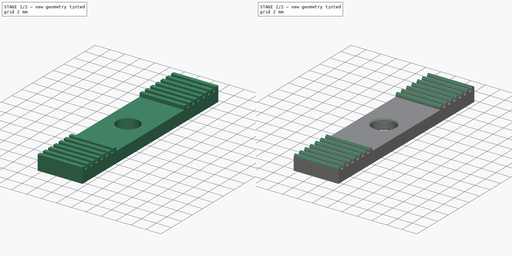
[diagram: build sequence overview — one tinted view per stage of 2, left to right]
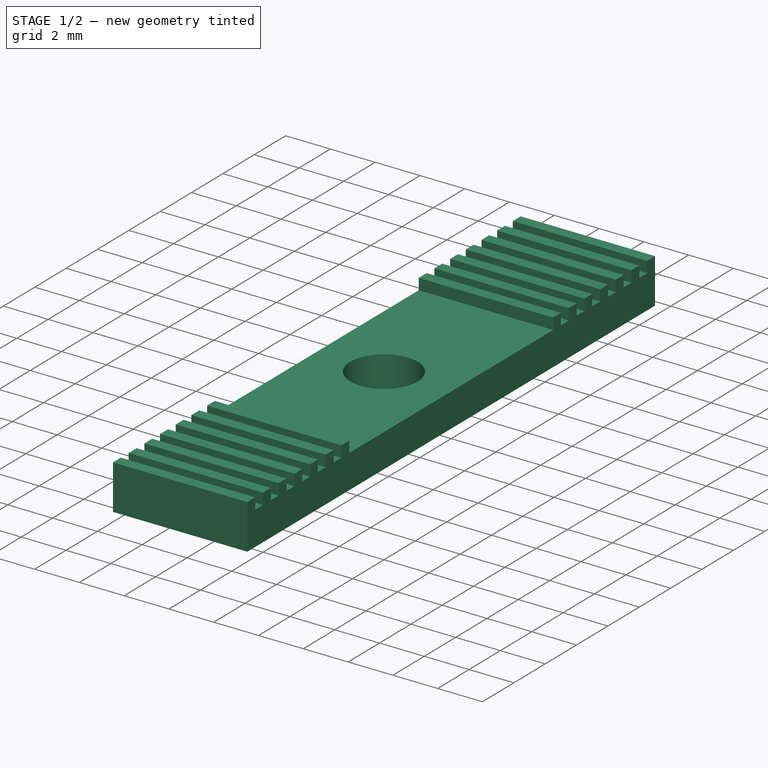
[diagram: stage 1 of 2 — iso view after this stage's code; geometry added in this stage tinted green]
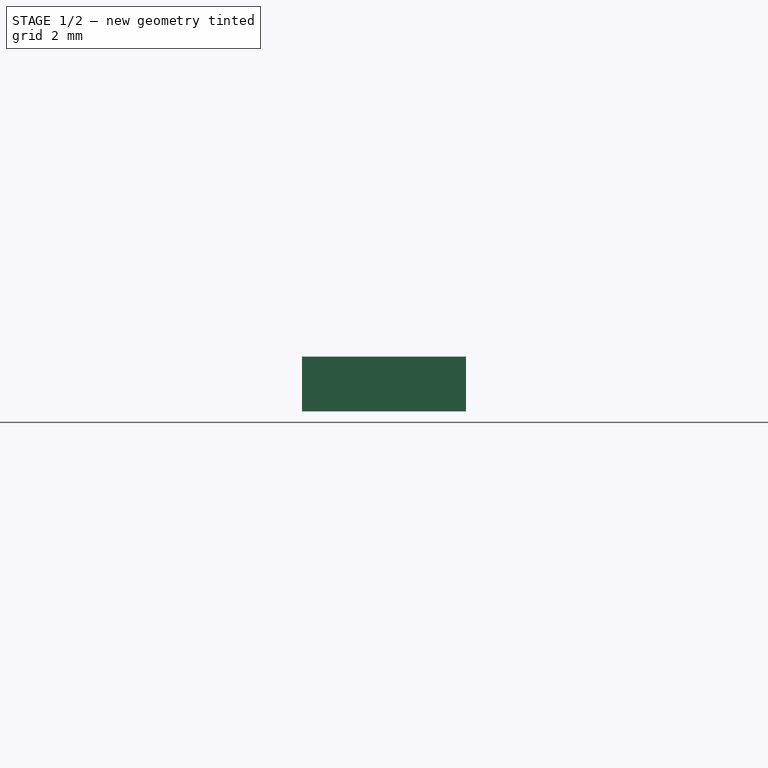
[diagram: stage 1 of 2 — front view after this stage's code; geometry added in this stage tinted green]
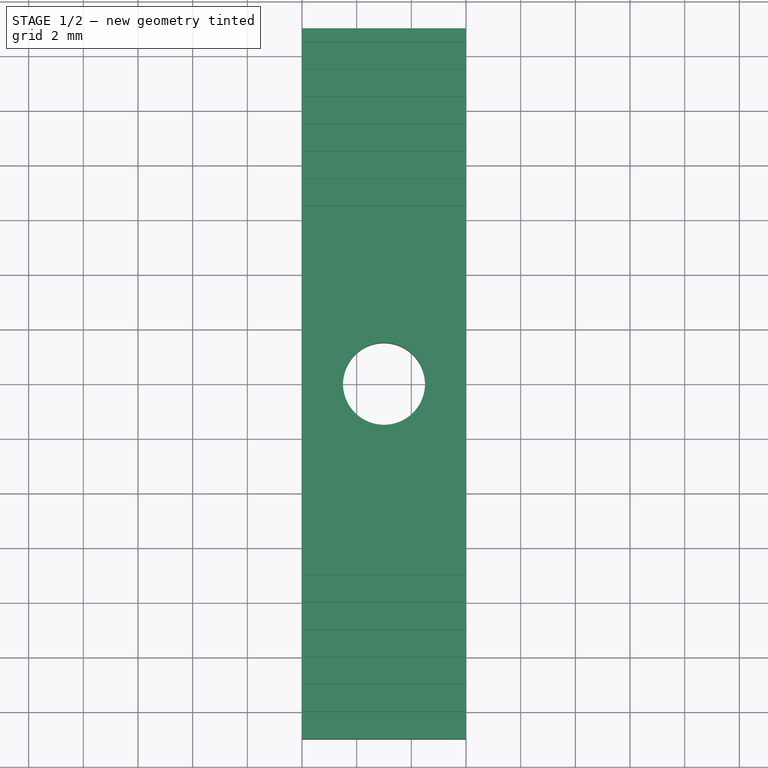
[diagram: stage 1 of 2 — top view after this stage's code; geometry added in this stage tinted green]
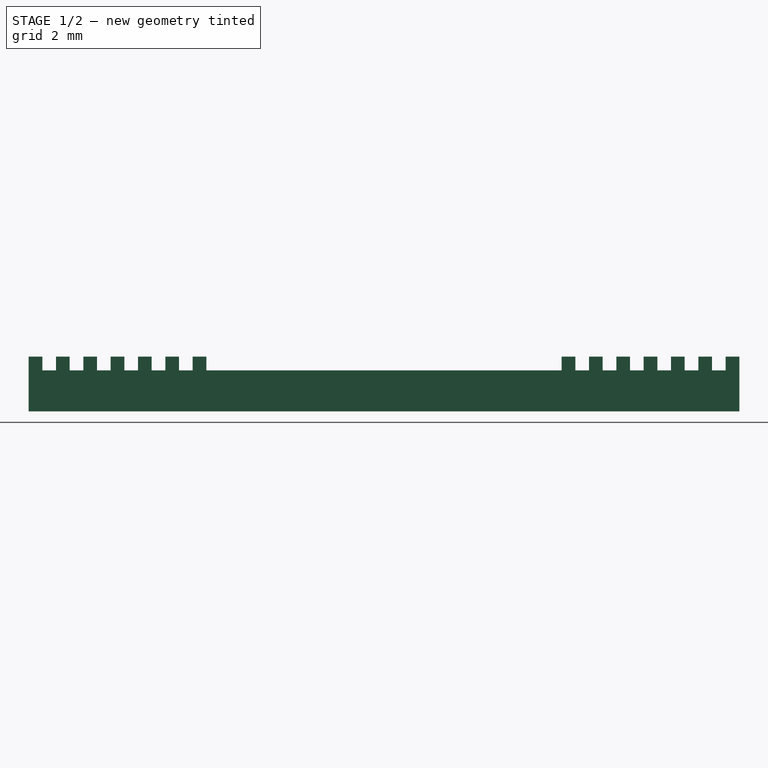
[diagram: stage 1 of 2 — right view after this stage's code; geometry added in this stage tinted green]
FCSTD DOCUMENT  (FreeCAD 1.0R39109 (Git))
Label: 2_belt_clamp
License: All rights reserved
LicenseURL: https://en.wikipedia.org/wiki/All_rights_reserved
objects: Sketcher::SketchObject×2, App::FeaturePython×1, PartDesign::Pad×1, PartDesign::Hole×1, PartDesign::Fillet×1, PartDesign::Chamfer×1, PartDesign::Body×1
note: 17 computed .brp shape members not serialized (recipe doc carries the construction recipe); baked Part::Feature solids carry a one-line shape summary decoded from their .brp

FEATURE [App::FeaturePython] dd  # WARN: FeaturePython — macro-defined, semantics opaque (R4)
  DynamicData = Created with DynamicData (v2.74) workbench. | This is a simple container object built | for holding custom properties.
  H_1 = 2
  L_1 = 26
  W_1 = 6
FEATURE [Sketcher::SketchObject] Sketch
  ArcFitTolerance = 1e-06
  AttachmentSupport = -> [YZ_Plane]
  FullyConstrained = false
  MakeInternals = false
  MapMode = 5
  Placement = pos=(0,0,0) rot=(0.57735,0.57735,0.57735;2.0944rad)
  expr: Constraints[162] = dd.L_1 / 2
  expr: Constraints[6] = dd.L_1
  expr: Constraints[7] = dd.H_1
  sketch-geometry (61):
    g0: LineSegment [constr] StartX=14.6619 StartY=0.5 StartZ=0 EndX=-13 EndY=0.5 EndZ=0
    g1: LineSegment StartX=-13 StartY=0.5 StartZ=0 EndX=-13 EndY=-1.5 EndZ=0
    g2: LineSegment StartX=-13 StartY=-1.5 StartZ=0 EndX=13 EndY=-1.5 EndZ=0
    g3: GeomPoint [constr] X=0 Y=0 Z=0
    g4: LineSegment StartX=-13 StartY=0.5 StartZ=0 EndX=-12.5 EndY=0.5 EndZ=0
    g5: LineSegment StartX=-12.5 StartY=0.5 StartZ=0 EndX=-12.5 EndY=0 EndZ=0
    g6: LineSegment StartX=-12.5 StartY=0 StartZ=0 EndX=-12 EndY=0 EndZ=0
    g7: LineSegment StartX=-12 StartY=0 StartZ=0 EndX=-12 EndY=0.5 EndZ=0
    g8: LineSegment StartX=-12 StartY=0.5 StartZ=0 EndX=-11.5 EndY=0.5 EndZ=0
    g9: LineSegment StartX=-11.5 StartY=0.5 StartZ=0 EndX=-11.5 EndY=0 EndZ=0
    g10: LineSegment StartX=-11.5 StartY=0 StartZ=0 EndX=-11 EndY=0 EndZ=0
    g11: LineSegment StartX=-11 StartY=0 StartZ=0 EndX=-11 EndY=0.5 EndZ=0
    g12: LineSegment StartX=-11 StartY=0.5 StartZ=0 EndX=-10.5 EndY=0.5 EndZ=0
    g13: LineSegment StartX=-10.5 StartY=0.5 StartZ=0 EndX=-10.5 EndY=0 EndZ=0
    g14: LineSegment StartX=-10.5 StartY=0 StartZ=0 EndX=-10 EndY=0 EndZ=0
    g15: LineSegment StartX=-10 StartY=0 StartZ=0 EndX=-10 EndY=0.5 EndZ=0
    g16: LineSegment StartX=-10 StartY=0.5 StartZ=0 EndX=-9.5 EndY=0.5 EndZ=0
    g17: LineSegment StartX=-9.5 StartY=0.5 StartZ=0 EndX=-9.5 EndY=0 EndZ=0
    g18: LineSegment StartX=-9.5 StartY=0 StartZ=0 EndX=-9 EndY=0 EndZ=0
    g19: LineSegment StartX=-9 StartY=0 StartZ=0 EndX=-9 EndY=0.5 EndZ=0
    g20: LineSegment StartX=-9 StartY=0.5 StartZ=0 EndX=-8.5 EndY=0.5 EndZ=0
    g21: LineSegment StartX=-8.5 StartY=0.5 StartZ=0 EndX=-8.5 EndY=0 EndZ=0
    g22: LineSegment StartX=-8.5 StartY=0 StartZ=0 EndX=-8 EndY=0 EndZ=0
    g23: LineSegment StartX=-8 StartY=0 StartZ=0 EndX=-8 EndY=0.5 EndZ=0
    g24: LineSegment StartX=-8 StartY=0.5 StartZ=0 EndX=-7.5 EndY=0.5 EndZ=0
    g25: LineSegment StartX=-7.5 StartY=0.5 StartZ=0 EndX=-7.5 EndY=0 EndZ=0
    g26: LineSegment StartX=-7.5 StartY=0 StartZ=0 EndX=-7 EndY=0 EndZ=0
    g27: LineSegment StartX=-7 StartY=0 StartZ=0 EndX=-7 EndY=0.5 EndZ=0
    g28: LineSegment StartX=-7 StartY=0.5 StartZ=0 EndX=-6.5 EndY=0.5 EndZ=0
    g29: LineSegment StartX=-6.5 StartY=0.5 StartZ=0 EndX=-6.5 EndY=0 EndZ=0
    g30: LineSegment StartX=-6.5 StartY=0 StartZ=0 EndX=0 EndY=0 EndZ=0
    g31: LineSegment [constr] StartX=-14.6619 StartY=0.5 StartZ=0 EndX=13 EndY=0.5 EndZ=0
    g32: LineSegment StartX=13 StartY=0.5 StartZ=0 EndX=13 EndY=-1.5 EndZ=0
    g33: GeomPoint [constr] X=0 Y=0 Z=0
    g34: LineSegment StartX=13 StartY=0.5 StartZ=0 EndX=12.5 EndY=0.5 EndZ=0
    g35: LineSegment StartX=12.5 StartY=0.5 StartZ=0 EndX=12.5 EndY=1.9713e-06 EndZ=0
    g36: LineSegment StartX=12.5 StartY=1.9713e-06 StartZ=0 EndX=12 EndY=1.93501e-06 EndZ=0
    g37: LineSegment StartX=12 StartY=1.93501e-06 StartZ=0 EndX=12 EndY=0.5 EndZ=0
    g38: LineSegment StartX=12 StartY=0.5 StartZ=0 EndX=11.5 EndY=0.5 EndZ=0
    g39: LineSegment StartX=11.5 StartY=0.5 StartZ=0 EndX=11.5 EndY=-1.7311e-12 EndZ=0
    g40: LineSegment StartX=11.5 StartY=-1.7311e-12 StartZ=0 EndX=11 EndY=1.7311e-12 EndZ=0
    g41: LineSegment StartX=11 StartY=1.7311e-12 StartZ=0 EndX=11 EndY=0.5 EndZ=0
    g42: LineSegment StartX=11 StartY=0.5 StartZ=0 EndX=10.5 EndY=0.5 EndZ=0
    g43: LineSegment StartX=10.5 StartY=0.5 StartZ=0 EndX=10.5 EndY=-1.064e-13 EndZ=0
    g44: LineSegment StartX=10.5 StartY=-1.064e-13 StartZ=0 EndX=10 EndY=1.064e-13 EndZ=0
    g45: LineSegment StartX=10 StartY=1.064e-13 StartZ=0 EndX=10 EndY=0.5 EndZ=0
    g46: LineSegment StartX=10 StartY=0.5 StartZ=0 EndX=9.5 EndY=0.5 EndZ=0
    g47: LineSegment StartX=9.5 StartY=0.5 StartZ=0 EndX=9.5 EndY=-1.3e-15 EndZ=0
    g48: LineSegment StartX=9.5 StartY=-1.3e-15 StartZ=0 EndX=9 EndY=1.3e-15 EndZ=0
    g49: LineSegment StartX=9 StartY=1.3e-15 StartZ=0 EndX=9 EndY=0.5 EndZ=0
    g50: LineSegment StartX=9 StartY=0.5 StartZ=0 EndX=8.5 EndY=0.5 EndZ=0
    g51: LineSegment StartX=8.5 StartY=0.5 StartZ=0 EndX=8.5 EndY=0 EndZ=0
    g52: LineSegment StartX=8.5 StartY=0 StartZ=0 EndX=8 EndY=0 EndZ=0
    g53: LineSegment StartX=8 StartY=0 StartZ=0 EndX=8 EndY=0.5 EndZ=0
    g54: LineSegment StartX=8 StartY=0.5 StartZ=0 EndX=7.5 EndY=0.5 EndZ=0
    g55: LineSegment StartX=7.5 StartY=0.5 StartZ=0 EndX=7.5 EndY=0 EndZ=0
    g56: LineSegment StartX=7.5 StartY=0 StartZ=0 EndX=7 EndY=0 EndZ=0
    g57: LineSegment StartX=7 StartY=0 StartZ=0 EndX=7 EndY=0.5 EndZ=0
    g58: LineSegment StartX=7 StartY=0.5 StartZ=0 EndX=6.5 EndY=0.5 EndZ=0
    g59: LineSegment StartX=6.5 StartY=0.5 StartZ=0 EndX=6.5 EndY=0 EndZ=0
    g60: LineSegment StartX=6.5 StartY=0 StartZ=0 EndX=0 EndY=0 EndZ=0
  constraints (163):
    c: Coincident(g0,g1)
    c: Coincident(g1,g2)
    c: Vertical(g1)
    c: Horizontal(g0)
    c: Horizontal(g2)
    c: Coincident(g3,g-1)
    c: DistanceX(g2,g2) = 26
    c: Distance(g1,g1) = 2
    c: Coincident(g0,g4)
    c: PointOnObject(g4,g0)
    c: Coincident(g4,g5)
    c: PointOnObject(g5,g-1)
    c: Coincident(g5,g6)
    c: PointOnObject(g6,g-1)
    c: Coincident(g6,g7)
    c: PointOnObject(g7,g0)
    c: Vertical(g7)
    c: Coincident(g7,g8)
    c: PointOnObject(g8,g0)
    c: Coincident(g8,g9)
    c: PointOnObject(g9,g-1)
    c: Vertical(g9)
    c: Coincident(g9,g10)
    c: PointOnObject(g10,g-1)
    c: Coincident(g10,g11)
    c: PointOnObject(g11,g0)
    c: Coincident(g11,g12)
    c: PointOnObject(g12,g0)
    c: Coincident(g12,g13)
    c: PointOnObject(g13,g-1)
    c: Vertical(g13)
    c: Coincident(g13,g14)
    c: PointOnObject(g14,g-1)
    c: Coincident(g14,g15)
    c: PointOnObject(g15,g0)
    c: Coincident(g15,g16)
    c: PointOnObject(g16,g0)
    c: Coincident(g16,g17)
    c: PointOnObject(g17,g-1)
    c: Vertical(g17)
    c: Coincident(g17,g18)
    c: PointOnObject(g18,g-1)
    c: Coincident(g18,g19)
    c: PointOnObject(g19,g0)
    c: Vertical(g19)
    c: Coincident(g19,g20)
    c: PointOnObject(g20,g0)
    c: Coincident(g20,g21)
    c: PointOnObject(g21,g-1)
    c: Coincident(g21,g22)
    c: PointOnObject(g22,g-1)
    c: Coincident(g22,g23)
    c: PointOnObject(g23,g0)
    c: Vertical(g23)
    c: Coincident(g23,g24)
    c: PointOnObject(g24,g0)
    c: Coincident(g24,g25)
    c: PointOnObject(g25,g-1)
    c: Coincident(g25,g26)
    c: PointOnObject(g26,g-1)
    c: Coincident(g26,g27)
    c: PointOnObject(g27,g0)
    c: Equal(g26,g24)
    c: Equal(g24,g22)
    c: Equal(g22,g20)
    c: Equal(g20,g18)
    c: Equal(g18,g16)
    c: Equal(g16,g14)
    c: Equal(g14,g12)
    c: Equal(g12,g10)
    c: Equal(g10,g8)
    c: Equal(g8,g6)
    c: Equal(g6,g4)
    c: Vertical(g5)
    c: Vertical(g11)
    c: Vertical(g15)
    c: Vertical(g21)
    c: Vertical(g25)
    c: Vertical(g27)
    c: Coincident(g27,g28)
    c: PointOnObject(g28,g0)
    c: Coincident(g28,g29)
    c: PointOnObject(g29,g-1)
    c: Vertical(g29)
    c: Coincident(g29,g30)
    c: Coincident(g30,g3)
    c: Equal(g28,g26)
    c: Distance(g0,g6) = 0.5
    c: Distance(g5,g1) = 0.5
    c: Coincident(g31,g32)
    c: Vertical(g32)
    c: Horizontal(g31)
    c: Distance(g32,g32) = 2
    c: Coincident(g31,g34)
    c: PointOnObject(g34,g31)
    c: Coincident(g34,g35)
    c: Coincident(g35,g36)
    c: Coincident(g36,g37)
    c: PointOnObject(g37,g31)
    c: Vertical(g37)
    c: Coincident(g37,g38)
    c: PointOnObject(g38,g31)
    c: Coincident(g38,g39)
    c: Vertical(g39)
    c: Coincident(g39,g40)
    c: Coincident(g40,g41)
    c: PointOnObject(g41,g31)
    c: Coincident(g41,g42)
    c: PointOnObject(g42,g31)
    c: Coincident(g42,g43)
    c: Vertical(g43)
    c: Coincident(g43,g44)
    c: Coincident(g44,g45)
    c: PointOnObject(g45,g31)
    c: Coincident(g45,g46)
    c: PointOnObject(g46,g31)
    c: Coincident(g46,g47)
    c: Vertical(g47)
    c: Coincident(g47,g48)
    c: Coincident(g48,g49)
    c: PointOnObject(g49,g31)
    c: Vertical(g49)
    c: Coincident(g49,g50)
    c: PointOnObject(g50,g31)
    c: Coincident(g50,g51)
    c: Coincident(g51,g52)
    c: Coincident(g52,g53)
    c: PointOnObject(g53,g31)
    c: Vertical(g53)
    c: Coincident(g53,g54)
    c: PointOnObject(g54,g31)
    c: Coincident(g54,g55)
    c: Coincident(g55,g56)
    c: Coincident(g56,g57)
    c: PointOnObject(g57,g31)
    c: Equal(g56,g54)
    c: Equal(g54,g52)
    c: Equal(g52,g50)
    c: Equal(g50,g48)
    c: Equal(g48,g46)
    c: Equal(g46,g44)
    c: Equal(g44,g42)
    c: Equal(g42,g40)
    c: Equal(g40,g38)
    c: Equal(g38,g36)
    c: Equal(g36,g34)
    c: Vertical(g35)
    c: Vertical(g41)
    c: Vertical(g45)
    c: Vertical(g51)
    c: Vertical(g55)
    c: Vertical(g57)
    c: Coincident(g57,g58)
    c: PointOnObject(g58,g31)
    c: Coincident(g58,g59)
    c: Vertical(g59)
    c: Coincident(g59,g60)
    c: Coincident(g60,g33)
    c: Equal(g58,g56)
    c: Distance(g31,g36) = 0.5
    c: Distance(g35,g32) = 0.5
    c: Coincident(g32,g2)
    c: Distance(g2,g-2) = 13
FEATURE [PartDesign::Pad] Pad
  Direction = (1,0,0)
  Length = 6
  Length2 = 10
  Placement = pos=(0,0,0) rot=(1,1,1;2.0944rad)
  Profile = -> Sketch
  ReferenceAxis = -> Sketch [N_Axis]
  Refine = true
  Suppressed = false
  Type = 0
FEATURE [Sketcher::SketchObject] Sketch001
  ArcFitTolerance = 1e-06
  AttachmentSupport = -> [Pad]
  ExternalGeometry = -> [Pad]
  FullyConstrained = true
  MakeInternals = false
  MapMode = 5
  Placement = pos=(0,0,0) rot=(0,0,-1;1.5708rad)
  expr: Constraints[1] = dd.W_1 / 2
  sketch-geometry (1):
    g0: Circle CenterX=0 CenterY=3 CenterZ=0 NormalX=0 NormalY=0 NormalZ=1 AngleXU=0 Radius=1.5
  constraints (3):
    c: PointOnObject(g0,g-2)
    c: Distance(g0,g-3) = 3
    c: Diameter(g0) = 3
FEATURE [PartDesign::Hole] Hole
  BaseFeature = -> Pad
  CustomThreadClearance = 0
  Depth = 25
  DepthType = 0
  Diameter = 3
  DrillForDepth = false
  DrillPoint = 1
  DrillPointAngle = 118
  HoleCutCountersinkAngle = 90
  HoleCutCustomValues = false
  HoleCutDepth = 0
  HoleCutDiameter = 6.1
  HoleCutType = 0
  ModelThread = false
  Placement = pos=(0,0,0) rot=(1,1,1;2.0944rad)
  Profile = -> Sketch001
  Refine = true
  Suppressed = false
  Tapered = false
  TaperedAngle = 90
  ThreadClass = 0
  ThreadDepth = 25
  ThreadDepthType = 0
  ThreadDirection = 0
  ThreadFit = 0
  ThreadSize = 0
  ThreadType = 0
  Threaded = false
  UseCustomThreadClearance = false
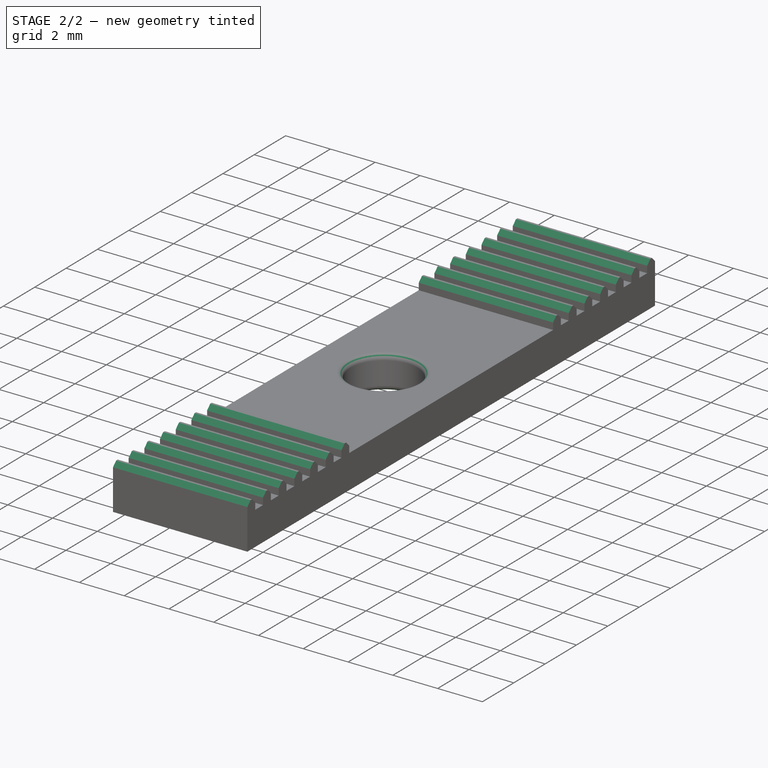
[diagram: stage 2 of 2 — iso view after this stage's code; geometry added in this stage tinted green]
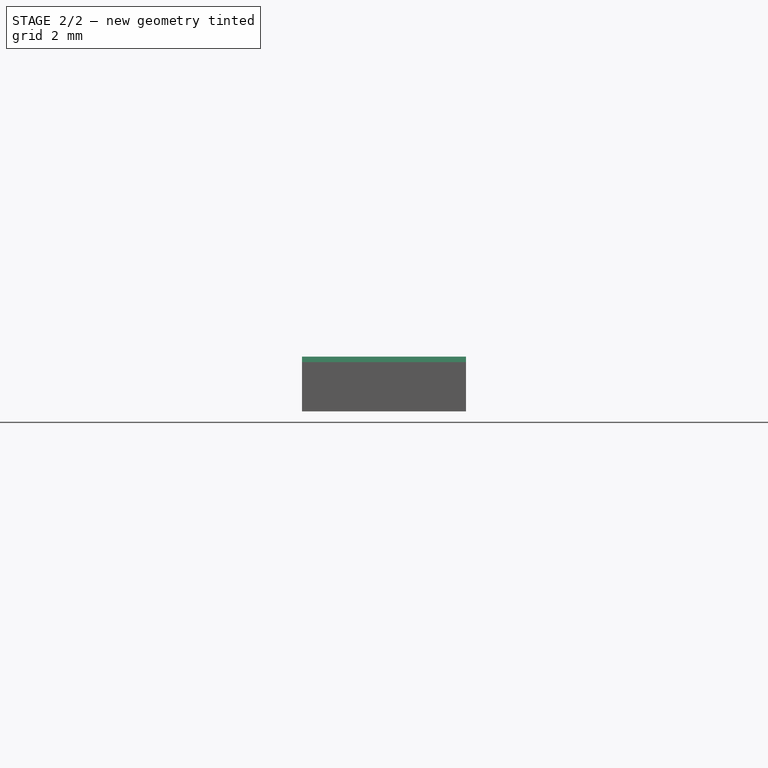
[diagram: stage 2 of 2 — front view after this stage's code; geometry added in this stage tinted green]
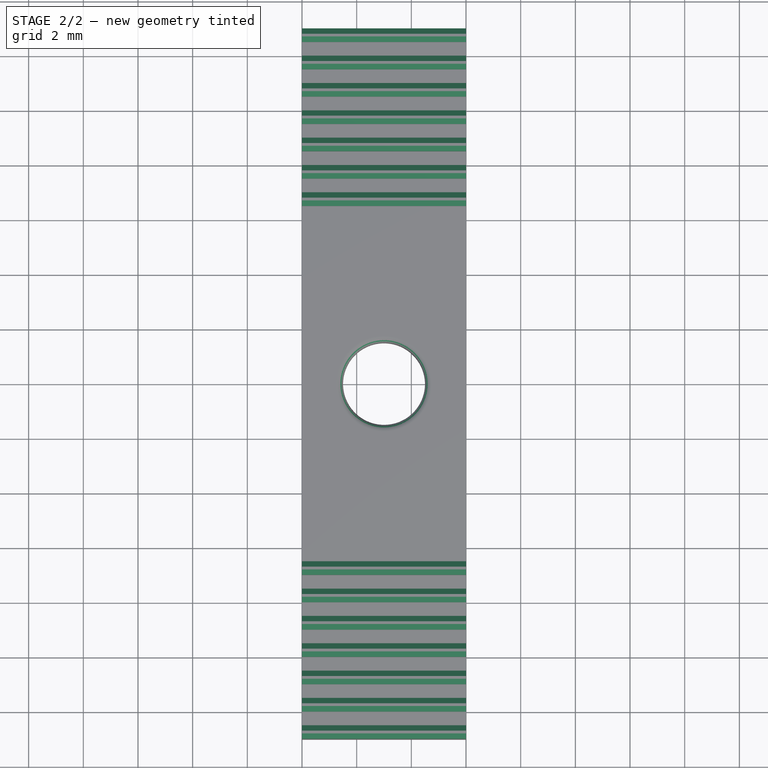
[diagram: stage 2 of 2 — top view after this stage's code; geometry added in this stage tinted green]
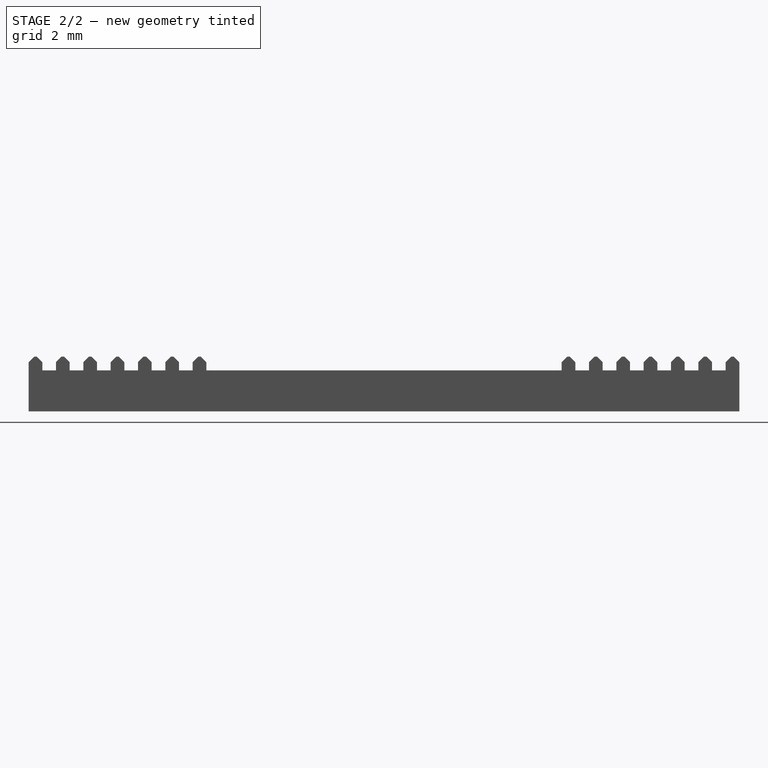
[diagram: stage 2 of 2 — right view after this stage's code; geometry added in this stage tinted green]
FEATURE [PartDesign::Fillet] Fillet
  Base = -> Hole [Edge121,Edge11]
  BaseFeature = -> Hole
  Placement = pos=(0,0,0) rot=(1,1,1;2.0944rad)
  Radius = 0.25
  Refine = true
  SupportTransform = false
  Suppressed = false
  UseAllEdges = false
FEATURE [PartDesign::Chamfer] Chamfer
  Angle = 45
  Base = -> Fillet [Edge8,Edge172,Edge122,Edge171,Edge168,Edge167,Edge164,Edge163,Edge160,Edge159,Edge156,Edge155,Edge152,Edge151,Edge147,Edge146,Edge143,Edge142,Edge139,Edge138,Edge135,Edge134,Edge131,Edge130,Edge127,Edge126,Edge123,Edge119]
  BaseFeature = -> Fillet
  ChamferType = 0
  FlipDirection = false
  Placement = pos=(0,0,0) rot=(1,1,1;2.0944rad)
  Refine = true
  Size = 0.2
  Size2 = 1
  SupportTransform = false
  Suppressed = false
  UseAllEdges = false
FEATURE [PartDesign::Body] Body
  AllowCompound = false
  Group = -> [Sketch,Pad,Sketch001,Hole,Fillet,Chamfer]
  Origin = -> Origin
  Tip = -> Chamfer
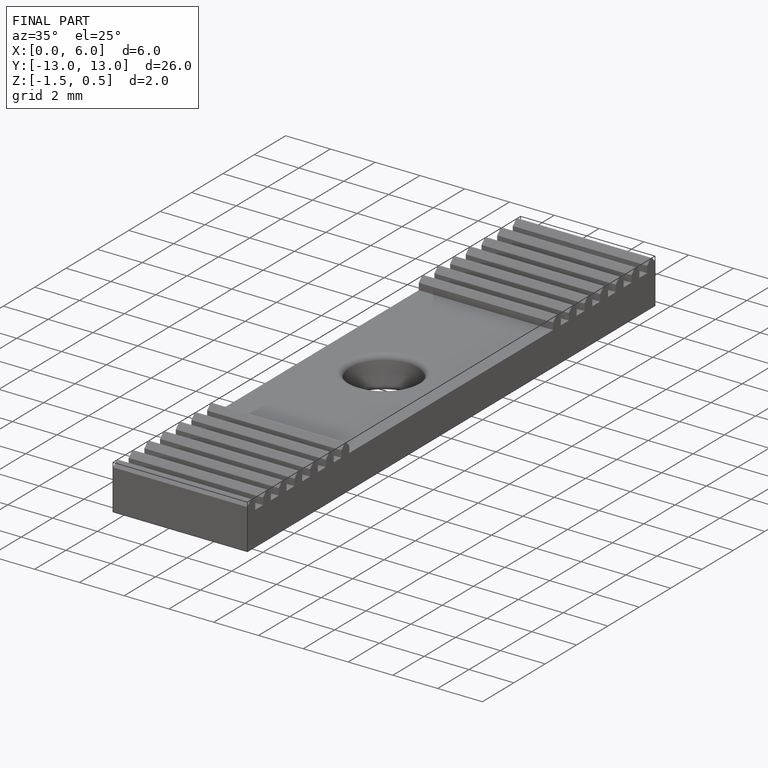
[diagram: finished part — iso view with bounding-box wireframe]
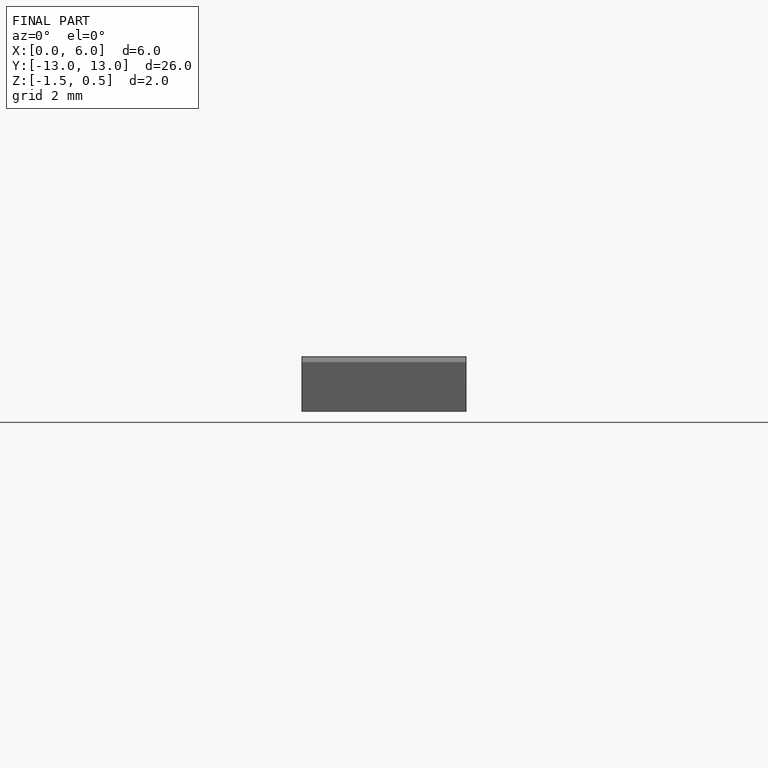
[diagram: finished part — front view with bounding-box wireframe]
